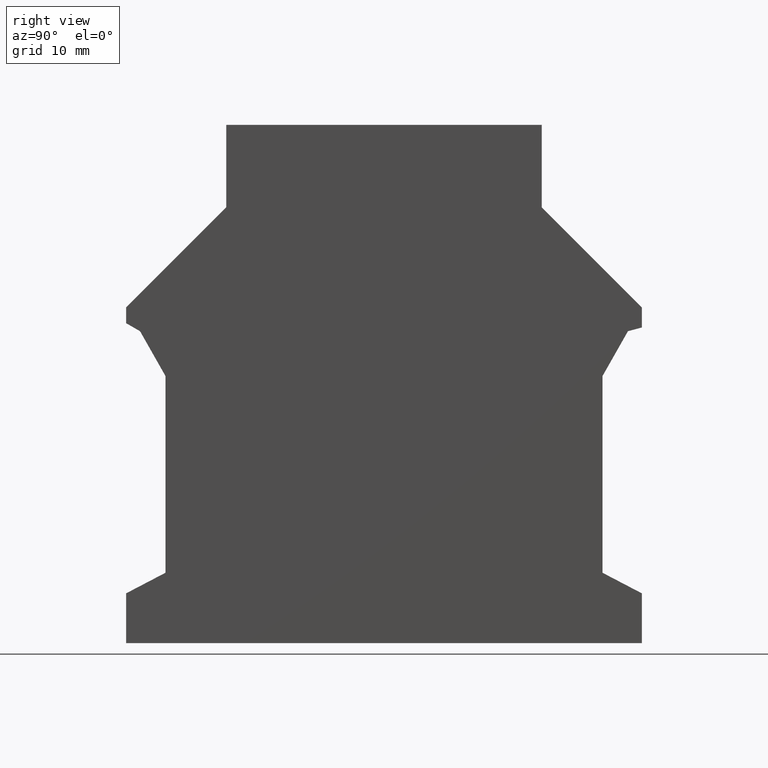
[diagram: clean part render]
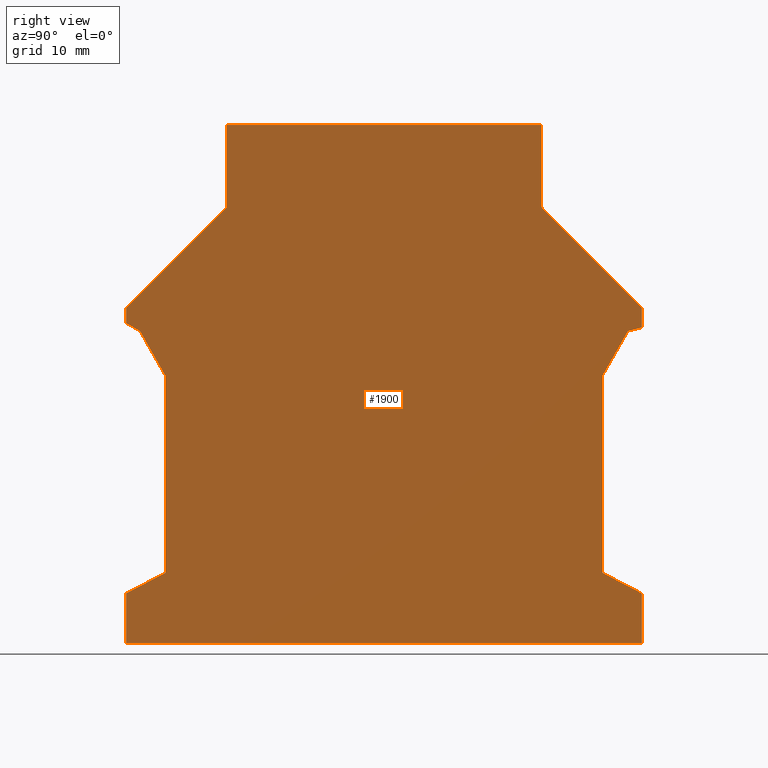
[diagram: same view with one face highlighted and labeled with its STEP entity id]
A machine part, right view. The second image highlights one B-rep face of the part: STEP entity #1900.
In plain terms, the highlighted planar face has unit normal (-1, 0, -0).
Its self-contained STEP definition (entity closure, byte-faithful):
#120=CARTESIAN_POINT('',(27.9666321988984,62.4035915835004,-1.5));
#130=VERTEX_POINT('',#120);
#160=CARTESIAN_POINT('',(27.9666321988984,62.4035915835004,-1.5));
#170=DIRECTION('',(-0.493605519458383,0.869685915236196,0.));
#180=VECTOR('',#170,1.);
#190=LINE('',#160,#180);
#200=CARTESIAN_POINT('',(25.8666321988984,66.1035915835004,-1.5));
#210=VERTEX_POINT('',#200);
#220=EDGE_CURVE('',#130,#210,#190,.T.);
#480=CARTESIAN_POINT('',(0.,0.,-1.5));
#490=DIRECTION('',(0.,0.,1.));
#500=DIRECTION('',(1.,0.,0.));
#510=AXIS2_PLACEMENT_3D('',#480,#490,#500);
#520=PLANE('',#510);
#530=CARTESIAN_POINT('',(32.9666321988984,0.,-1.5));
#540=DIRECTION('',(0.,-1.,0.));
#550=VECTOR('',#540,1.);
#560=LINE('',#530,#550);
#570=CARTESIAN_POINT('',(32.9666321988984,83.1035915835004,-1.5));
#580=VERTEX_POINT('',#570);
#590=CARTESIAN_POINT('',(32.9666321988984,76.3035915835004,-1.5));
#600=VERTEX_POINT('',#590);
#610=EDGE_CURVE('',#580,#600,#560,.T.);
#620=ORIENTED_EDGE('',*,*,#610,.F.);
#630=CARTESIAN_POINT('',(-43.336959384602,0.,-1.5));
#640=DIRECTION('',(0.707106781186547,0.707106781186548,0.));
#650=VECTOR('',#640,1.);
#660=LINE('',#630,#650);
#670=CARTESIAN_POINT('',(24.7166321988984,68.0535915835004,-1.5));
#680=VERTEX_POINT('',#670);
#690=EDGE_CURVE('',#680,#600,#660,.T.);
#700=ORIENTED_EDGE('',*,*,#690,.T.);
#710=CARTESIAN_POINT('',(24.7166321988984,0.,-1.5));
#720=DIRECTION('',(0.,-1.,0.));
#730=VECTOR('',#720,1.);
#740=LINE('',#710,#730);
#750=CARTESIAN_POINT('',(24.7166321988984,66.4117331547962,-1.5));
#760=VERTEX_POINT('',#750);
#770=EDGE_CURVE('',#680,#760,#740,.T.);
#780=ORIENTED_EDGE('',*,*,#770,.F.);
#790=CARTESIAN_POINT('',(0.,73.0345347921079,-1.5));
#800=DIRECTION('',(0.96592582628907,-0.258819045102515,0.));
#810=VECTOR('',#800,1.);
#820=LINE('',#790,#810);
#830=EDGE_CURVE('',#760,#210,#820,.T.);
#840=ORIENTED_EDGE('',*,*,#830,.F.);
#850=ORIENTED_EDGE('',*,*,#220,.T.);
#860=CARTESIAN_POINT('',(27.9666321988984,46.2035915835004,-1.5));
#870=DIRECTION('',(0.,1.,0.));
#880=VECTOR('',#870,1.);
#890=LINE('',#860,#880);
#900=CARTESIAN_POINT('',(27.9666321988984,46.2035915835004,-1.5));
#910=VERTEX_POINT('',#900);
#920=EDGE_CURVE('',#910,#130,#890,.T.);
#930=ORIENTED_EDGE('',*,*,#920,.T.);
#940=CARTESIAN_POINT('',(0.,31.5748916640767,-1.5));
#950=DIRECTION('',(-0.886098212808821,-0.463497526699996,0.));
#960=VECTOR('',#950,1.);
#970=LINE('',#940,#960);
#980=CARTESIAN_POINT('',(24.7166321988984,44.5035915835004,-1.5));
#990=VERTEX_POINT('',#980);
#1000=EDGE_CURVE('',#910,#990,#970,.T.);
#1010=ORIENTED_EDGE('',*,*,#1000,.F.);
#1020=CARTESIAN_POINT('',(24.7166321988984,0.,-1.5));
#1030=DIRECTION('',(0.,-1.,0.));
#1040=VECTOR('',#1030,1.);
#1050=LINE('',#1020,#1040);
#1060=CARTESIAN_POINT('',(24.7166321988984,40.4035915835004,-1.5));
#1070=VERTEX_POINT('',#1060);
#1080=EDGE_CURVE('',#990,#1070,#1050,.T.);
#1090=ORIENTED_EDGE('',*,*,#1080,.F.);
#1100=CARTESIAN_POINT('',(0.,40.4035915835004,-1.5));
#1110=DIRECTION('',(1.,0.,0.));
#1120=VECTOR('',#1110,1.);
#1130=LINE('',#1100,#1120);
#1140=CARTESIAN_POINT('',(67.2166321988984,40.4035915835004,-1.5));
#1150=VERTEX_POINT('',#1140);
#1160=EDGE_CURVE('',#1070,#1150,#1130,.T.);
#1170=ORIENTED_EDGE('',*,*,#1160,.F.);
#1180=CARTESIAN_POINT('',(67.2166321988984,0.,-1.5));
#1190=DIRECTION('',(0.,1.,0.));
#1200=VECTOR('',#1190,1.);
#1210=LINE('',#1180,#1200);
#1220=CARTESIAN_POINT('',(67.2166321988985,44.5035915835004,-1.5));
#1230=VERTEX_POINT('',#1220);
#1240=EDGE_CURVE('',#1150,#1230,#1210,.T.);
#1250=ORIENTED_EDGE('',*,*,#1240,.F.);
#1260=CARTESIAN_POINT('',(0.,79.6630607336934,-1.5));
#1270=DIRECTION('',(-0.88609821280882,0.463497526699998,0.));
#1280=VECTOR('',#1270,1.);
#1290=LINE('',#1260,#1280);
#1300=CARTESIAN_POINT('',(63.9666321988985,46.2035915835003,-1.5));
#1310=VERTEX_POINT('',#1300);
#1320=EDGE_CURVE('',#1230,#1310,#1290,.T.);
#1330=ORIENTED_EDGE('',*,*,#1320,.F.);
#1340=CARTESIAN_POINT('',(63.9666321988984,62.4035915835004,-1.5));
#1350=DIRECTION('',(0.,-1.,0.));
#1360=VECTOR('',#1350,1.);
#1370=LINE('',#1340,#1360);
#1380=CARTESIAN_POINT('',(63.9666321988984,62.4035915835004,-1.5));
#1390=VERTEX_POINT('',#1380);
#1400=EDGE_CURVE('',#1390,#1310,#1370,.T.);
#1410=ORIENTED_EDGE('',*,*,#1400,.T.);
#1420=CARTESIAN_POINT('',(66.0666321988984,66.1035915835004,-1.5));
#1430=DIRECTION('',(-0.493605519458384,-0.869685915236195,0.));
#1440=VECTOR('',#1430,1.);
#1450=LINE('',#1420,#1440);
#1460=CARTESIAN_POINT('',(66.0666321988984,66.1035915835004,-1.5));
#1470=VERTEX_POINT('',#1460);
#1480=EDGE_CURVE('',#1470,#1390,#1450,.T.);
#1490=ORIENTED_EDGE('',*,*,#1480,.T.);
#1500=CARTESIAN_POINT('',(0.,27.9600036990134,-1.5));
#1510=DIRECTION('',(0.866025403784433,0.50000000000001,0.));
#1520=VECTOR('',#1510,1.);
#1530=LINE('',#1500,#1520);
#1540=CARTESIAN_POINT('',(67.2166321988984,66.7675443930685,-1.5));
#1550=VERTEX_POINT('',#1540);
#1560=EDGE_CURVE('',#1470,#1550,#1530,.T.);
#1570=ORIENTED_EDGE('',*,*,#1560,.F.);
#1580=CARTESIAN_POINT('',(67.2166321988984,0.,-1.5));
#1590=DIRECTION('',(0.,1.,0.));
#1600=VECTOR('',#1590,1.);
#1610=LINE('',#1580,#1600);
#1620=CARTESIAN_POINT('',(67.2166321988984,68.0535915835004,-1.5));
#1630=VERTEX_POINT('',#1620);
#1640=EDGE_CURVE('',#1550,#1630,#1610,.T.);
#1650=ORIENTED_EDGE('',*,*,#1640,.F.);
#1660=CARTESIAN_POINT('',(135.270223782399,0.,-1.5));
#1670=DIRECTION('',(0.707106781186547,-0.707106781186548,0.));
#1680=VECTOR('',#1670,1.);
#1690=LINE('',#1660,#1680);
#1700=CARTESIAN_POINT('',(58.9666321988984,76.3035915835004,-1.5));
#1710=VERTEX_POINT('',#1700);
#1720=EDGE_CURVE('',#1710,#1630,#1690,.T.);
#1730=ORIENTED_EDGE('',*,*,#1720,.T.);
#1740=CARTESIAN_POINT('',(58.9666321988984,0.,-1.5));
#1750=DIRECTION('',(0.,1.,0.));
#1760=VECTOR('',#1750,1.);
#1770=LINE('',#1740,#1760);
#1780=CARTESIAN_POINT('',(58.9666321988984,83.1035915835004,-1.5));
#1790=VERTEX_POINT('',#1780);
#1800=EDGE_CURVE('',#1710,#1790,#1770,.T.);
#1810=ORIENTED_EDGE('',*,*,#1800,.F.);
#1820=CARTESIAN_POINT('',(0.,83.1035915835004,-1.5));
#1830=DIRECTION('',(-1.,0.,0.));
#1840=VECTOR('',#1830,1.);
#1850=LINE('',#1820,#1840);
#1860=EDGE_CURVE('',#1790,#580,#1850,.T.);
#1870=ORIENTED_EDGE('',*,*,#1860,.F.);
#1880=EDGE_LOOP('',(#1870,#1810,#1730,#1650,#1570,#1490,#1410,#1330,
#1250,#1170,#1090,#1010,#930,#850,#840,#780,#700,#620));
#1890=FACE_OUTER_BOUND('',#1880,.T.);
#1900=ADVANCED_FACE('',(#1890),#520,.F.);